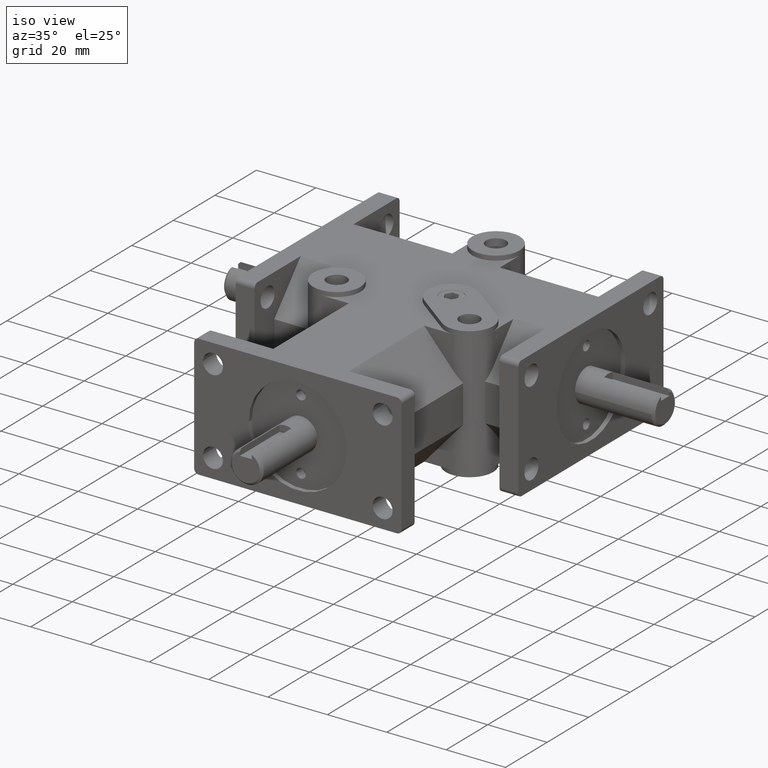
[diagram: clean part render]
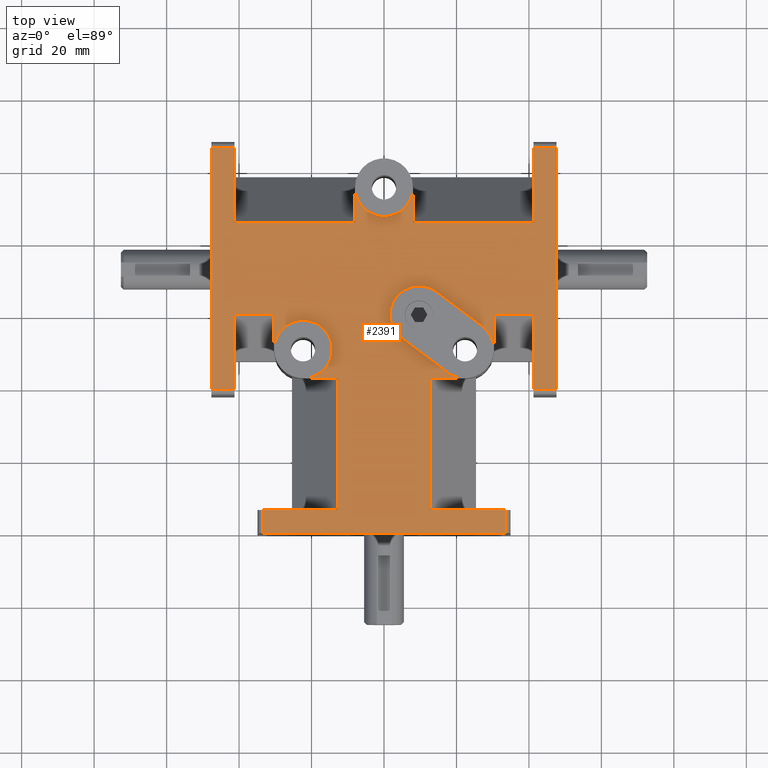
[diagram: tour spotlight — one face highlighted and labeled with its STEP entity id]
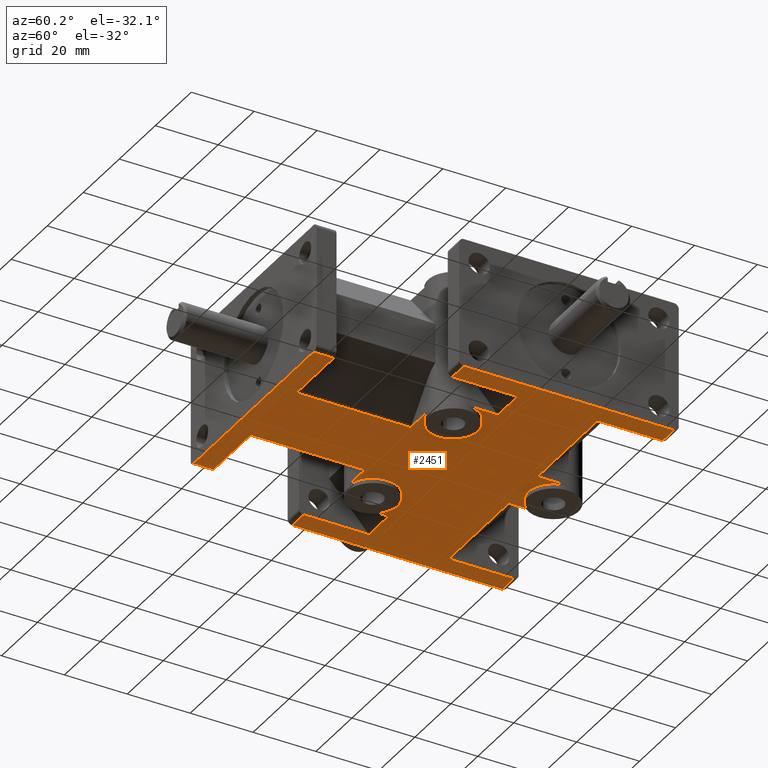
[diagram: tour spotlight — one face highlighted and labeled with its STEP entity id]
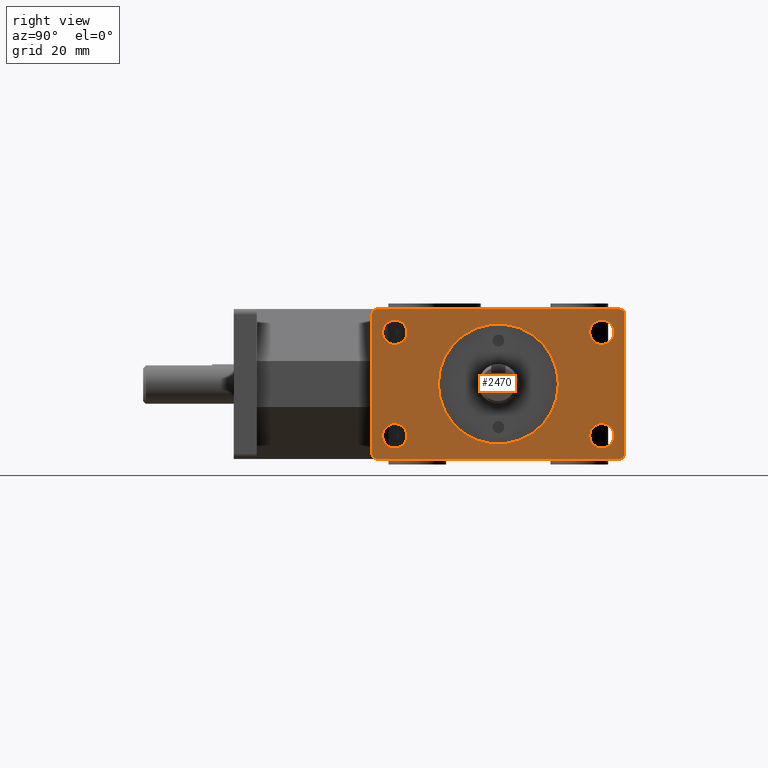
[diagram: tour spotlight — one face highlighted and labeled with its STEP entity id]
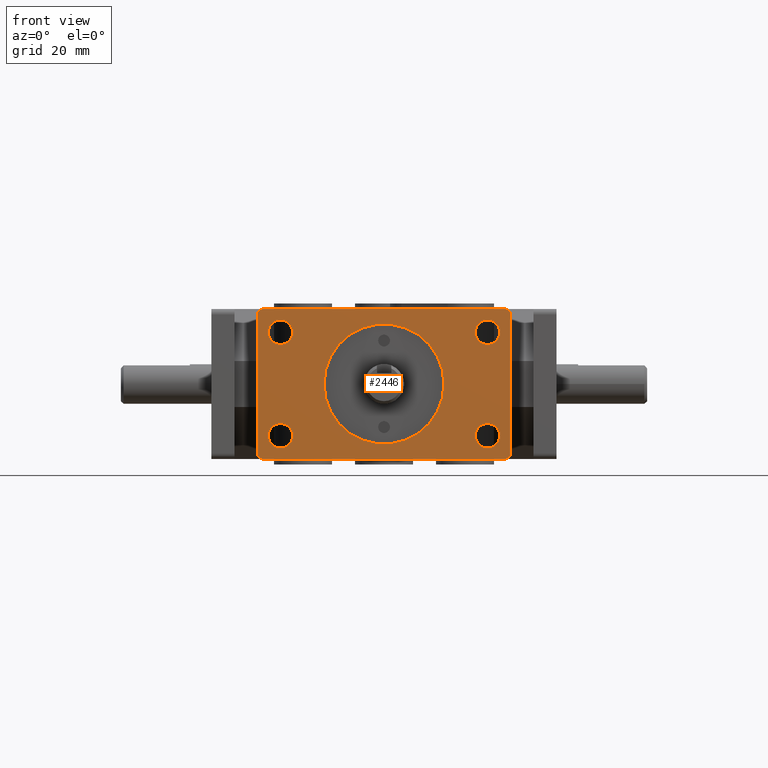
[diagram: tour spotlight — one face highlighted and labeled with its STEP entity id]
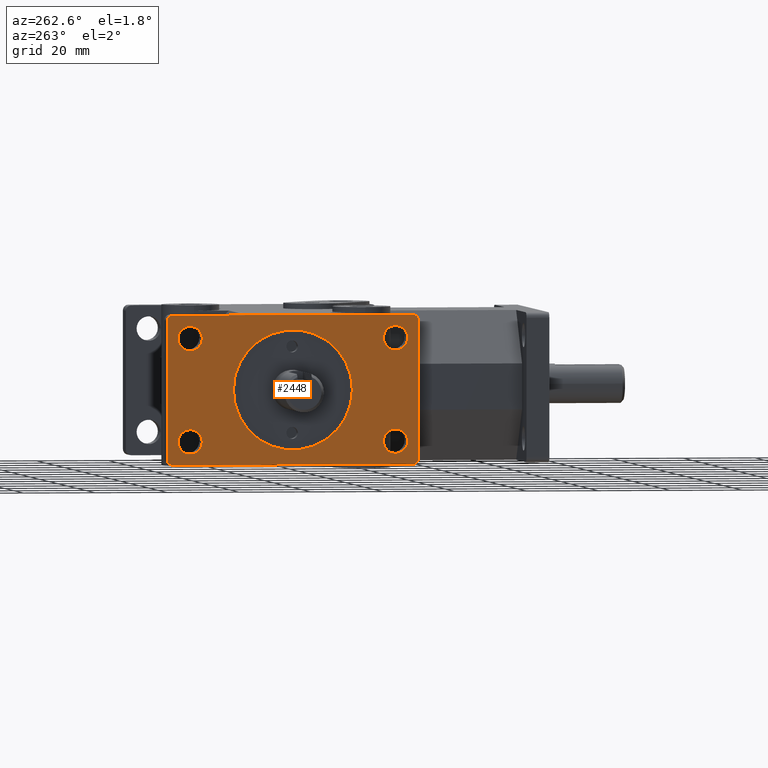
[diagram: tour spotlight — one face highlighted and labeled with its STEP entity id]
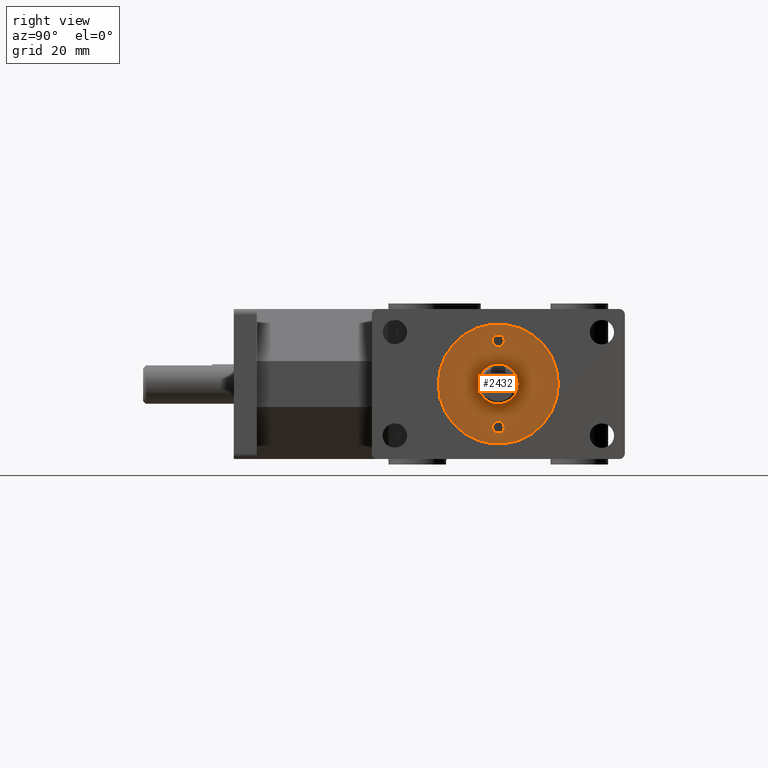
[diagram: tour spotlight — one face highlighted and labeled with its STEP entity id]
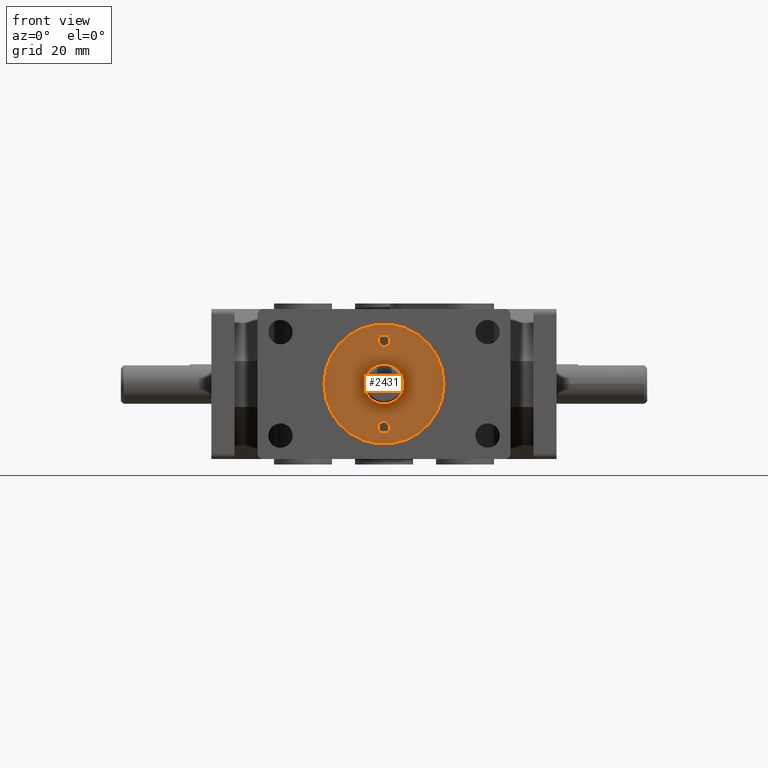
[diagram: tour spotlight — one face highlighted and labeled with its STEP entity id]
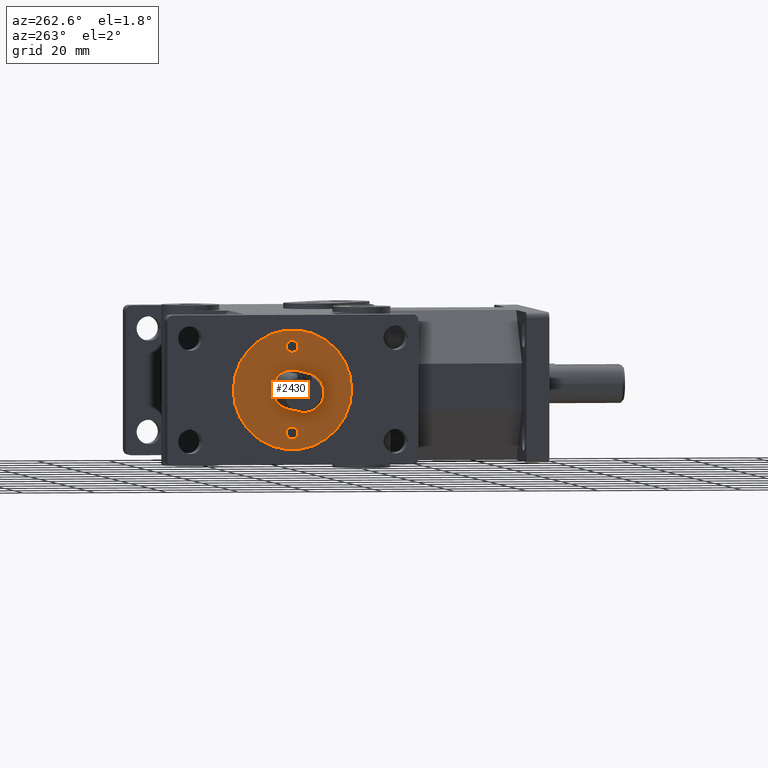
[diagram: tour spotlight — one face highlighted and labeled with its STEP entity id]
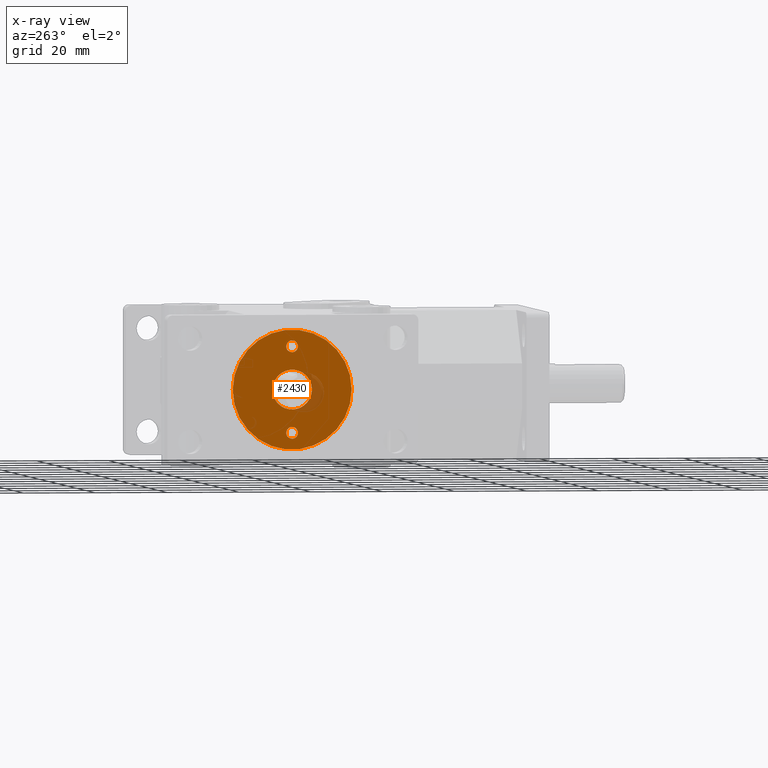
[diagram: x-ray of the same camera — body ghosted, this tour face saturated]
A machine part: a face-by-face anatomy tour. The part has 135 B-rep faces; the first image is the clean iso view, then the 8 largest visible faces are spotlighted one at a time (largest first), each with its STEP entity span.

Face 1 — top view, entity #2391. In plain terms, the highlighted planar face has unit normal (0, 0, 1).
Definition (entity closure, byte-faithful):
#113=CIRCLE('',#2553,8.001);
#114=CIRCLE('',#2554,8.001);
#115=CIRCLE('',#2555,8.001);
#116=CIRCLE('',#2556,8.001);
#117=CIRCLE('',#2557,8.001);
#233=FACE_OUTER_BOUND('',#368,.T.);
#368=EDGE_LOOP('',(#1654,#1655,#1656,#1657,#1658,#1659,#1660,#1661,#1662,
#1663,#1664,#1665,#1666,#1667,#1668,#1669,#1670,#1671,#1672,#1673,#1674,
#1675,#1676,#1677,#1678,#1679,#1680,#1681,#1682,#1683,#1684,#1685,#1686,
#1687));
#551=LINE('',#3536,#779);
#554=LINE('',#3545,#782);
#572=LINE('',#3592,#800);
#575=LINE('',#3602,#803);
#578=LINE('',#3609,#806);
#582=LINE('',#3620,#810);
#597=LINE('',#3656,#825);
#598=LINE('',#3658,#826);
#599=LINE('',#3660,#827);
#600=LINE('',#3662,#828);
#601=LINE('',#3664,#829);
#602=LINE('',#3665,#830);
#603=LINE('',#3667,#831);
#604=LINE('',#3671,#832);
#605=LINE('',#3675,#833);
#606=LINE('',#3678,#834);
#607=LINE('',#3680,#835);
#608=LINE('',#3682,#836);
#609=LINE('',#3684,#837);
#610=LINE('',#3686,#838);
#611=LINE('',#3687,#839);
#612=LINE('',#3689,#840);
#613=LINE('',#3692,#841);
#614=LINE('',#3694,#842);
#615=LINE('',#3696,#843);
#616=LINE('',#3698,#844);
#617=LINE('',#3700,#845);
#618=LINE('',#3701,#846);
#619=LINE('',#3703,#847);
#779=VECTOR('',#2795,1.);
#782=VECTOR('',#2802,1.);
#800=VECTOR('',#2836,1.);
#803=VECTOR('',#2843,1.);
#806=VECTOR('',#2848,1.);
#810=VECTOR('',#2856,1.);
#825=VECTOR('',#2887,1.);
#826=VECTOR('',#2888,1.);
#827=VECTOR('',#2889,1.);
#828=VECTOR('',#2890,1.);
#829=VECTOR('',#2891,1.);
#830=VECTOR('',#2892,1.);
#831=VECTOR('',#2893,1.);
#832=VECTOR('',#2896,1.);
#833=VECTOR('',#2899,1.);
#834=VECTOR('',#2902,1.);
#835=VECTOR('',#2903,1.);
#836=VECTOR('',#2904,1.);
#837=VECTOR('',#2905,1.);
#838=VECTOR('',#2906,1.);
#839=VECTOR('',#2907,1.);
#840=VECTOR('',#2908,1.);
#841=VECTOR('',#2911,1.);
#842=VECTOR('',#2912,1.);
#843=VECTOR('',#2913,1.);
#844=VECTOR('',#2914,1.);
#845=VECTOR('',#2915,1.);
#846=VECTOR('',#2916,1.);
#847=VECTOR('',#2917,1.);
#1009=VERTEX_POINT('',#3533);
#1010=VERTEX_POINT('',#3535);
#1013=VERTEX_POINT('',#3542);
#1014=VERTEX_POINT('',#3544);
#1031=VERTEX_POINT('',#3583);
#1035=VERTEX_POINT('',#3590);
#1039=VERTEX_POINT('',#3599);
#1040=VERTEX_POINT('',#3601);
#1041=VERTEX_POINT('',#3605);
#1043=VERTEX_POINT('',#3608);
#1046=VERTEX_POINT('',#3616);
#1048=VERTEX_POINT('',#3619);
#1061=VERTEX_POINT('',#3655);
#1062=VERTEX_POINT('',#3657);
#1063=VERTEX_POINT('',#3659);
#1064=VERTEX_POINT('',#3661);
#1065=VERTEX_POINT('',#3663);
#1066=VERTEX_POINT('',#3666);
#1067=VERTEX_POINT('',#3668);
#1068=VERTEX_POINT('',#3670);
#1069=VERTEX_POINT('',#3672);
#1070=VERTEX_POINT('',#3674);
#1071=VERTEX_POINT('',#3676);
#1072=VERTEX_POINT('',#3679);
#1073=VERTEX_POINT('',#3681);
#1074=VERTEX_POINT('',#3683);
#1075=VERTEX_POINT('',#3685);
#1076=VERTEX_POINT('',#3688);
#1077=VERTEX_POINT('',#3690);
#1078=VERTEX_POINT('',#3693);
#1079=VERTEX_POINT('',#3695);
#1080=VERTEX_POINT('',#3697);
#1081=VERTEX_POINT('',#3699);
#1082=VERTEX_POINT('',#3702);
#1242=EDGE_CURVE('',#1010,#1009,#551,.T.);
#1246=EDGE_CURVE('',#1014,#1013,#554,.T.);
#1268=EDGE_CURVE('',#1031,#1035,#572,.T.);
#1272=EDGE_CURVE('',#1040,#1039,#575,.T.);
#1275=EDGE_CURVE('',#1043,#1041,#578,.T.);
#1280=EDGE_CURVE('',#1048,#1046,#582,.T.);
#1298=EDGE_CURVE('',#1010,#1061,#597,.T.);
#1299=EDGE_CURVE('',#1062,#1009,#598,.T.);
#1300=EDGE_CURVE('',#1063,#1062,#599,.T.);
#1301=EDGE_CURVE('',#1064,#1063,#600,.T.);
#1302=EDGE_CURVE('',#1065,#1064,#601,.T.);
#1303=EDGE_CURVE('',#1043,#1065,#602,.T.);
#1304=EDGE_CURVE('',#1066,#1041,#603,.T.);
#1305=EDGE_CURVE('',#1066,#1067,#113,.T.);
#1306=EDGE_CURVE('',#1067,#1068,#604,.T.);
#1307=EDGE_CURVE('',#1068,#1069,#114,.T.);
#1308=EDGE_CURVE('',#1069,#1070,#605,.T.);
#1309=EDGE_CURVE('',#1070,#1071,#115,.T.);
#1310=EDGE_CURVE('',#1031,#1071,#606,.T.);
#1311=EDGE_CURVE('',#1035,#1072,#607,.T.);
#1312=EDGE_CURVE('',#1073,#1072,#608,.T.);
#1313=EDGE_CURVE('',#1074,#1073,#609,.T.);
#1314=EDGE_CURVE('',#1075,#1074,#610,.T.);
#1315=EDGE_CURVE('',#1014,#1075,#611,.T.);
#1316=EDGE_CURVE('',#1013,#1076,#612,.T.);
#1317=EDGE_CURVE('',#1076,#1077,#116,.T.);
#1318=EDGE_CURVE('',#1040,#1077,#613,.T.);
#1319=EDGE_CURVE('',#1039,#1078,#614,.T.);
#1320=EDGE_CURVE('',#1079,#1078,#615,.T.);
#1321=EDGE_CURVE('',#1080,#1079,#616,.T.);
#1322=EDGE_CURVE('',#1081,#1080,#617,.T.);
#1323=EDGE_CURVE('',#1048,#1081,#618,.T.);
#1324=EDGE_CURVE('',#1046,#1082,#619,.T.);
#1325=EDGE_CURVE('',#1082,#1061,#117,.T.);
#1654=ORIENTED_EDGE('',*,*,#1298,.F.);
#1655=ORIENTED_EDGE('',*,*,#1242,.T.);
#1656=ORIENTED_EDGE('',*,*,#1299,.F.);
#1657=ORIENTED_EDGE('',*,*,#1300,.F.);
#1658=ORIENTED_EDGE('',*,*,#1301,.F.);
#1659=ORIENTED_EDGE('',*,*,#1302,.F.);
#1660=ORIENTED_EDGE('',*,*,#1303,.F.);
#1661=ORIENTED_EDGE('',*,*,#1275,.T.);
#1662=ORIENTED_EDGE('',*,*,#1304,.F.);
#1663=ORIENTED_EDGE('',*,*,#1305,.T.);
#1664=ORIENTED_EDGE('',*,*,#1306,.T.);
#1665=ORIENTED_EDGE('',*,*,#1307,.T.);
#1666=ORIENTED_EDGE('',*,*,#1308,.T.);
#1667=ORIENTED_EDGE('',*,*,#1309,.T.);
#1668=ORIENTED_EDGE('',*,*,#1310,.F.);
#1669=ORIENTED_EDGE('',*,*,#1268,.T.);
#1670=ORIENTED_EDGE('',*,*,#1311,.T.);
#1671=ORIENTED_EDGE('',*,*,#1312,.F.);
#1672=ORIENTED_EDGE('',*,*,#1313,.F.);
#1673=ORIENTED_EDGE('',*,*,#1314,.F.);
#1674=ORIENTED_EDGE('',*,*,#1315,.F.);
#1675=ORIENTED_EDGE('',*,*,#1246,.T.);
#1676=ORIENTED_EDGE('',*,*,#1316,.T.);
#1677=ORIENTED_EDGE('',*,*,#1317,.T.);
#1678=ORIENTED_EDGE('',*,*,#1318,.F.);
#1679=ORIENTED_EDGE('',*,*,#1272,.T.);
#1680=ORIENTED_EDGE('',*,*,#1319,.T.);
#1681=ORIENTED_EDGE('',*,*,#1320,.F.);
#1682=ORIENTED_EDGE('',*,*,#1321,.F.);
#1683=ORIENTED_EDGE('',*,*,#1322,.F.);
#1684=ORIENTED_EDGE('',*,*,#1323,.F.);
#1685=ORIENTED_EDGE('',*,*,#1280,.T.);
#1686=ORIENTED_EDGE('',*,*,#1324,.T.);
#1687=ORIENTED_EDGE('',*,*,#1325,.T.);
#2304=PLANE('',#2552);
#2391=ADVANCED_FACE('',(#233),#2304,.T.);
#2552=AXIS2_PLACEMENT_3D('',#3654,#2885,#2886);
#2553=AXIS2_PLACEMENT_3D('',#3669,#2894,#2895);
#2554=AXIS2_PLACEMENT_3D('',#3673,#2897,#2898);
#2555=AXIS2_PLACEMENT_3D('',#3677,#2900,#2901);
#2556=AXIS2_PLACEMENT_3D('',#3691,#2909,#2910);
#2557=AXIS2_PLACEMENT_3D('',#3704,#2918,#2919);
#2795=DIRECTION('',(0.,-1.,0.));
#2802=DIRECTION('',(-1.,0.,0.));
#2836=DIRECTION('',(1.,0.,0.));
#2843=DIRECTION('',(-1.,0.,0.));
#2848=DIRECTION('',(0.,1.,0.));
#2856=DIRECTION('',(1.,0.,0.));
#2885=DIRECTION('center_axis',(0.,0.,1.));
#2886=DIRECTION('ref_axis',(-1.,0.,0.));
#2887=DIRECTION('',(-1.,0.,0.));
#2888=DIRECTION('',(1.,0.,0.));
#2889=DIRECTION('',(0.,1.,0.));
#2890=DIRECTION('',(-1.,0.,0.));
#2891=DIRECTION('',(0.,-1.,0.));
#2892=DIRECTION('',(1.,0.,0.));
#2893=DIRECTION('',(-1.,0.,0.));
#2894=DIRECTION('center_axis',(0.,0.,-1.));
#2895=DIRECTION('ref_axis',(1.,0.,0.));
#2896=DIRECTION('',(-0.8,0.6,0.));
#2897=DIRECTION('center_axis',(0.,0.,-1.));
#2898=DIRECTION('ref_axis',(1.,0.,0.));
#2899=DIRECTION('',(0.8,-0.6,0.));
#2900=DIRECTION('center_axis',(0.,0.,-1.));
#2901=DIRECTION('ref_axis',(1.,0.,0.));
#2902=DIRECTION('',(0.,-1.,0.));
#2903=DIRECTION('',(0.,-1.,0.));
#2904=DIRECTION('',(-1.,0.,0.));
#2905=DIRECTION('',(0.,-1.,0.));
#2906=DIRECTION('',(1.,0.,0.));
#2907=DIRECTION('',(0.,1.,0.));
#2908=DIRECTION('',(0.,1.,0.));
#2909=DIRECTION('center_axis',(0.,0.,-1.));
#2910=DIRECTION('ref_axis',(1.,0.,0.));
#2911=DIRECTION('',(0.,1.,0.));
#2912=DIRECTION('',(0.,1.,0.));
#2913=DIRECTION('',(1.,0.,0.));
#2914=DIRECTION('',(0.,1.,0.));
#2915=DIRECTION('',(-1.,0.,0.));
#2916=DIRECTION('',(0.,-1.,0.));
#2917=DIRECTION('',(0.,-1.,0.));
#2918=DIRECTION('center_axis',(0.,0.,-1.));
#2919=DIRECTION('ref_axis',(1.,0.,0.));
#3533=CARTESIAN_POINT('',(-12.7,6.35,20.701));
#3535=CARTESIAN_POINT('',(-12.7,42.672,20.701));
#3536=CARTESIAN_POINT('',(-12.7,29.9901887651822,20.701));
#3542=CARTESIAN_POINT('',(8.001,85.725,20.701));
#3544=CARTESIAN_POINT('',(41.275,85.725,20.701));
#3545=CARTESIAN_POINT('',(-20.6375,85.725,20.701));
#3583=CARTESIAN_POINT('',(30.353,60.325,20.701));
#3590=CARTESIAN_POINT('',(41.275,60.325,20.701));
#3592=CARTESIAN_POINT('',(-20.6375,60.325,20.701));
#3599=CARTESIAN_POINT('',(-41.275,85.725,20.701));
#3601=CARTESIAN_POINT('',(-8.001,85.725,20.701));
#3602=CARTESIAN_POINT('',(20.6375,85.725,20.701));
#3605=CARTESIAN_POINT('',(12.7,42.672,20.701));
#3608=CARTESIAN_POINT('',(12.7,6.35,20.701));
#3609=CARTESIAN_POINT('',(12.7,29.9901887651822,20.701));
#3616=CARTESIAN_POINT('',(-30.353,60.325,20.701));
#3619=CARTESIAN_POINT('',(-41.275,60.325,20.701));
#3620=CARTESIAN_POINT('',(20.6375,60.325,20.701));
#3654=CARTESIAN_POINT('Origin',(4.22994972382185E-15,53.6303775303644,20.701));
#3655=CARTESIAN_POINT('',(-22.352,42.672,20.701));
#3656=CARTESIAN_POINT('',(-22.352,42.672,20.701));
#3657=CARTESIAN_POINT('',(-33.401,6.35,20.701));
#3658=CARTESIAN_POINT('',(-12.7,6.35,20.701));
#3659=CARTESIAN_POINT('',(-33.401,0.,20.701));
#3660=CARTESIAN_POINT('',(-33.401,29.9901887651822,20.701));
#3661=CARTESIAN_POINT('',(33.401,0.,20.701));
#3662=CARTESIAN_POINT('',(34.925,0.,20.701));
#3663=CARTESIAN_POINT('',(33.401,6.35,20.701));
#3664=CARTESIAN_POINT('',(33.401,26.8151887651822,20.701));
#3665=CARTESIAN_POINT('',(34.925,6.35,20.701));
#3666=CARTESIAN_POINT('',(22.352,42.672,20.701));
#3667=CARTESIAN_POINT('',(-22.352,42.672,20.701));
#3668=CARTESIAN_POINT('',(17.5514,44.2722,20.701));
#3669=CARTESIAN_POINT('Origin',(22.352,50.673,20.701));
#3670=CARTESIAN_POINT('',(4.85140000000001,53.7972,20.701));
#3671=CARTESIAN_POINT('',(9.71946939271254,50.1461479554656,20.701));
#3672=CARTESIAN_POINT('',(14.4526,66.5988,20.701));
#3673=CARTESIAN_POINT('Origin',(9.652,60.198,20.701));
#3674=CARTESIAN_POINT('',(27.1526,57.0738,20.701));
#3675=CARTESIAN_POINT('',(12.9706693927125,67.7102479554656,20.701));
#3676=CARTESIAN_POINT('',(30.353,50.673,20.701));
#3677=CARTESIAN_POINT('Origin',(22.352,50.673,20.701));
#3678=CARTESIAN_POINT('',(30.353,50.673,20.701));
#3679=CARTESIAN_POINT('',(41.275,39.624,20.701));
#3680=CARTESIAN_POINT('',(41.275,50.6276887651822,20.701));
#3681=CARTESIAN_POINT('',(47.625,39.624,20.701));
#3682=CARTESIAN_POINT('',(20.6375,39.624,20.701));
#3683=CARTESIAN_POINT('',(47.625,106.426,20.701));
#3684=CARTESIAN_POINT('',(47.625,107.95,20.701));
#3685=CARTESIAN_POINT('',(41.275,106.426,20.701));
#3686=CARTESIAN_POINT('',(23.8125,106.426,20.701));
#3687=CARTESIAN_POINT('',(41.275,98.425,20.701));
#3688=CARTESIAN_POINT('',(8.00099999999999,95.377,20.701));
#3689=CARTESIAN_POINT('',(8.00099999999999,74.5036887651822,20.701));
#3690=CARTESIAN_POINT('',(-8.001,95.377,20.701));
#3691=CARTESIAN_POINT('Origin',(-5.63993296509579E-15,95.377,20.701));
#3692=CARTESIAN_POINT('',(-8.001,95.377,20.701));
#3693=CARTESIAN_POINT('',(-41.275,106.426,20.701));
#3694=CARTESIAN_POINT('',(-41.275,76.0276887651822,20.701));
#3695=CARTESIAN_POINT('',(-47.625,106.426,20.701));
#3696=CARTESIAN_POINT('',(-20.6375,106.426,20.701));
#3697=CARTESIAN_POINT('',(-47.625,39.624,20.701));
#3698=CARTESIAN_POINT('',(-47.625,107.95,20.701));
#3699=CARTESIAN_POINT('',(-41.275,39.624,20.701));
#3700=CARTESIAN_POINT('',(-23.8125,39.624,20.701));
#3701=CARTESIAN_POINT('',(-41.275,47.625,20.701));
#3702=CARTESIAN_POINT('',(-30.353,50.673,20.701));
#3703=CARTESIAN_POINT('',(-30.353,52.1516887651822,20.701));
#3704=CARTESIAN_POINT('Origin',(-22.352,50.673,20.701));

Face 2 — auxiliary view, entity #2451. In plain terms, the highlighted planar face has unit normal (0, 0, 1).
Definition (entity closure, byte-faithful):
#191=CIRCLE('',#2691,8.001);
#192=CIRCLE('',#2692,8.001);
#193=CIRCLE('',#2693,8.001);
#194=CIRCLE('',#2694,8.001);
#293=FACE_OUTER_BOUND('',#455,.T.);
#455=EDGE_LOOP('',(#1969,#1970,#1971,#1972,#1973,#1974,#1975,#1976,#1977,
#1978,#1979,#1980,#1981,#1982,#1983,#1984,#1985,#1986,#1987,#1988,#1989,
#1990,#1991,#1992,#1993,#1994,#1995,#1996,#1997,#1998,#1999));
#546=LINE('',#3521,#774);
#558=LINE('',#3556,#786);
#562=LINE('',#3565,#790);
#567=LINE('',#3580,#795);
#587=LINE('',#3635,#815);
#592=LINE('',#3647,#820);
#667=LINE('',#3905,#895);
#668=LINE('',#3911,#896);
#673=LINE('',#3935,#901);
#674=LINE('',#3941,#902);
#678=LINE('',#3962,#906);
#683=LINE('',#3986,#911);
#684=LINE('',#3988,#912);
#686=LINE('',#3995,#914);
#689=LINE('',#4007,#917);
#691=LINE('',#4014,#919);
#694=LINE('',#4026,#922);
#697=LINE('',#4034,#925);
#699=LINE('',#4042,#927);
#700=LINE('',#4045,#928);
#701=LINE('',#4046,#929);
#702=LINE('',#4048,#930);
#703=LINE('',#4051,#931);
#704=LINE('',#4052,#932);
#705=LINE('',#4054,#933);
#706=LINE('',#4059,#934);
#707=LINE('',#4060,#935);
#774=VECTOR('',#2784,1.);
#786=VECTOR('',#2810,1.);
#790=VECTOR('',#2816,1.);
#795=VECTOR('',#2827,1.);
#815=VECTOR('',#2867,1.);
#820=VECTOR('',#2876,1.);
#895=VECTOR('',#3121,1.);
#896=VECTOR('',#3126,1.);
#901=VECTOR('',#3151,1.);
#902=VECTOR('',#3156,1.);
#906=VECTOR('',#3178,1.);
#911=VECTOR('',#3203,1.);
#912=VECTOR('',#3206,1.);
#914=VECTOR('',#3214,1.);
#917=VECTOR('',#3227,1.);
#919=VECTOR('',#3235,1.);
#922=VECTOR('',#3248,1.);
#925=VECTOR('',#3257,1.);
#927=VECTOR('',#3265,1.);
#928=VECTOR('',#3268,1.);
#929=VECTOR('',#3269,1.);
#930=VECTOR('',#3270,1.);
#931=VECTOR('',#3273,1.);
#932=VECTOR('',#3274,1.);
#933=VECTOR('',#3275,1.);
#934=VECTOR('',#3280,1.);
#935=VECTOR('',#3281,1.);
#1001=VERTEX_POINT('',#3517);
#1003=VERTEX_POINT('',#3520);
#1018=VERTEX_POINT('',#3553);
#1019=VERTEX_POINT('',#3555);
#1022=VERTEX_POINT('',#3562);
#1023=VERTEX_POINT('',#3564);
#1029=VERTEX_POINT('',#3577);
#1030=VERTEX_POINT('',#3579);
#1054=VERTEX_POINT('',#3632);
#1055=VERTEX_POINT('',#3634);
#1057=VERTEX_POINT('',#3639);
#1060=VERTEX_POINT('',#3645);
#1137=VERTEX_POINT('',#3898);
#1140=VERTEX_POINT('',#3903);
#1142=VERTEX_POINT('',#3908);
#1143=VERTEX_POINT('',#3910);
#1149=VERTEX_POINT('',#3928);
#1152=VERTEX_POINT('',#3933);
#1154=VERTEX_POINT('',#3938);
#1155=VERTEX_POINT('',#3940);
#1162=VERTEX_POINT('',#3959);
#1163=VERTEX_POINT('',#3961);
#1169=VERTEX_POINT('',#3979);
#1172=VERTEX_POINT('',#3984);
#1189=VERTEX_POINT('',#4041);
#1190=VERTEX_POINT('',#4043);
#1191=VERTEX_POINT('',#4047);
#1192=VERTEX_POINT('',#4049);
#1193=VERTEX_POINT('',#4053);
#1194=VERTEX_POINT('',#4055);
#1195=VERTEX_POINT('',#4057);
#1235=EDGE_CURVE('',#1003,#1001,#546,.T.);
#1251=EDGE_CURVE('',#1019,#1018,#558,.T.);
#1255=EDGE_CURVE('',#1023,#1022,#562,.T.);
#1262=EDGE_CURVE('',#1030,#1029,#567,.T.);
#1287=EDGE_CURVE('',#1055,#1054,#587,.T.);
#1293=EDGE_CURVE('',#1057,#1060,#592,.T.);
#1414=EDGE_CURVE('',#1140,#1137,#667,.T.);
#1416=EDGE_CURVE('',#1142,#1143,#668,.T.);
#1428=EDGE_CURVE('',#1152,#1149,#673,.T.);
#1430=EDGE_CURVE('',#1154,#1155,#674,.T.);
#1440=EDGE_CURVE('',#1162,#1163,#678,.T.);
#1452=EDGE_CURVE('',#1172,#1169,#683,.T.);
#1453=EDGE_CURVE('',#1143,#1054,#684,.T.);
#1457=EDGE_CURVE('',#1137,#1142,#686,.T.);
#1464=EDGE_CURVE('',#1060,#1155,#689,.T.);
#1468=EDGE_CURVE('',#1149,#1154,#691,.T.);
#1475=EDGE_CURVE('',#1029,#1163,#694,.T.);
#1480=EDGE_CURVE('',#1023,#1172,#697,.T.);
#1484=EDGE_CURVE('',#1189,#1001,#699,.T.);
#1485=EDGE_CURVE('',#1189,#1190,#191,.T.);
#1486=EDGE_CURVE('',#1057,#1190,#700,.T.);
#1487=EDGE_CURVE('',#1019,#1152,#701,.T.);
#1488=EDGE_CURVE('',#1018,#1191,#702,.T.);
#1489=EDGE_CURVE('',#1191,#1192,#192,.T.);
#1490=EDGE_CURVE('',#1030,#1192,#703,.T.);
#1491=EDGE_CURVE('',#1169,#1162,#704,.T.);
#1492=EDGE_CURVE('',#1022,#1193,#705,.T.);
#1493=EDGE_CURVE('',#1193,#1194,#193,.T.);
#1494=EDGE_CURVE('',#1194,#1195,#194,.T.);
#1495=EDGE_CURVE('',#1055,#1195,#706,.T.);
#1496=EDGE_CURVE('',#1003,#1140,#707,.T.);
#1969=ORIENTED_EDGE('',*,*,#1484,.F.);
#1970=ORIENTED_EDGE('',*,*,#1485,.T.);
#1971=ORIENTED_EDGE('',*,*,#1486,.F.);
#1972=ORIENTED_EDGE('',*,*,#1293,.T.);
#1973=ORIENTED_EDGE('',*,*,#1464,.T.);
#1974=ORIENTED_EDGE('',*,*,#1430,.F.);
#1975=ORIENTED_EDGE('',*,*,#1468,.F.);
#1976=ORIENTED_EDGE('',*,*,#1428,.F.);
#1977=ORIENTED_EDGE('',*,*,#1487,.F.);
#1978=ORIENTED_EDGE('',*,*,#1251,.T.);
#1979=ORIENTED_EDGE('',*,*,#1488,.T.);
#1980=ORIENTED_EDGE('',*,*,#1489,.T.);
#1981=ORIENTED_EDGE('',*,*,#1490,.F.);
#1982=ORIENTED_EDGE('',*,*,#1262,.T.);
#1983=ORIENTED_EDGE('',*,*,#1475,.T.);
#1984=ORIENTED_EDGE('',*,*,#1440,.F.);
#1985=ORIENTED_EDGE('',*,*,#1491,.F.);
#1986=ORIENTED_EDGE('',*,*,#1452,.F.);
#1987=ORIENTED_EDGE('',*,*,#1480,.F.);
#1988=ORIENTED_EDGE('',*,*,#1255,.T.);
#1989=ORIENTED_EDGE('',*,*,#1492,.T.);
#1990=ORIENTED_EDGE('',*,*,#1493,.T.);
#1991=ORIENTED_EDGE('',*,*,#1494,.T.);
#1992=ORIENTED_EDGE('',*,*,#1495,.F.);
#1993=ORIENTED_EDGE('',*,*,#1287,.T.);
#1994=ORIENTED_EDGE('',*,*,#1453,.F.);
#1995=ORIENTED_EDGE('',*,*,#1416,.F.);
#1996=ORIENTED_EDGE('',*,*,#1457,.F.);
#1997=ORIENTED_EDGE('',*,*,#1414,.F.);
#1998=ORIENTED_EDGE('',*,*,#1496,.F.);
#1999=ORIENTED_EDGE('',*,*,#1235,.T.);
#2337=PLANE('',#2690);
#2451=ADVANCED_FACE('',(#293),#2337,.F.);
#2690=AXIS2_PLACEMENT_3D('',#4040,#3263,#3264);
#2691=AXIS2_PLACEMENT_3D('',#4044,#3266,#3267);
#2692=AXIS2_PLACEMENT_3D('',#4050,#3271,#3272);
#2693=AXIS2_PLACEMENT_3D('',#4056,#3276,#3277);
#2694=AXIS2_PLACEMENT_3D('',#4058,#3278,#3279);
#2784=DIRECTION('',(0.,1.,0.));
#2810=DIRECTION('',(1.,0.,0.));
#2816=DIRECTION('',(-1.,0.,0.));
#2827=DIRECTION('',(1.,0.,0.));
#2867=DIRECTION('',(0.,-1.,0.));
#2876=DIRECTION('',(-1.,0.,0.));
#3121=DIRECTION('',(0.,-1.,0.));
#3126=DIRECTION('',(0.,1.,0.));
#3151=DIRECTION('',(-1.,0.,0.));
#3156=DIRECTION('',(1.,0.,0.));
#3178=DIRECTION('',(-1.,0.,0.));
#3203=DIRECTION('',(1.,0.,0.));
#3206=DIRECTION('',(-1.,0.,0.));
#3214=DIRECTION('',(1.,0.,0.));
#3227=DIRECTION('',(0.,-1.,0.));
#3235=DIRECTION('',(0.,-1.,0.));
#3248=DIRECTION('',(0.,1.,0.));
#3257=DIRECTION('',(0.,-1.,0.));
#3263=DIRECTION('center_axis',(0.,0.,1.));
#3264=DIRECTION('ref_axis',(-1.,0.,0.));
#3265=DIRECTION('',(1.,0.,0.));
#3266=DIRECTION('center_axis',(0.,0.,1.));
#3267=DIRECTION('ref_axis',(1.,0.,0.));
#3268=DIRECTION('',(0.,-1.,0.));
#3269=DIRECTION('',(0.,1.,0.));
#3270=DIRECTION('',(0.,1.,0.));
#3271=DIRECTION('center_axis',(0.,0.,1.));
#3272=DIRECTION('ref_axis',(1.,0.,0.));
#3273=DIRECTION('',(0.,1.,0.));
#3274=DIRECTION('',(0.,1.,0.));
#3275=DIRECTION('',(0.,-1.,0.));
#3276=DIRECTION('center_axis',(0.,0.,1.));
#3277=DIRECTION('ref_axis',(1.,0.,0.));
#3278=DIRECTION('center_axis',(0.,0.,1.));
#3279=DIRECTION('ref_axis',(1.,0.,0.));
#3280=DIRECTION('',(1.,0.,0.));
#3281=DIRECTION('',(-1.,0.,0.));
#3517=CARTESIAN_POINT('',(-12.7,42.672,-20.701));
#3520=CARTESIAN_POINT('',(-12.7,6.35,-20.701));
#3521=CARTESIAN_POINT('',(-12.7,29.9901887651822,-20.701));
#3553=CARTESIAN_POINT('',(-8.001,85.725,-20.701));
#3555=CARTESIAN_POINT('',(-41.275,85.725,-20.701));
#3556=CARTESIAN_POINT('',(20.6375,85.725,-20.701));
#3562=CARTESIAN_POINT('',(30.353,60.325,-20.701));
#3564=CARTESIAN_POINT('',(41.275,60.325,-20.701));
#3565=CARTESIAN_POINT('',(-20.6375,60.325,-20.701));
#3577=CARTESIAN_POINT('',(41.275,85.725,-20.701));
#3579=CARTESIAN_POINT('',(8.001,85.725,-20.701));
#3580=CARTESIAN_POINT('',(-20.6375,85.725,-20.701));
#3632=CARTESIAN_POINT('',(12.7,6.35,-20.701));
#3634=CARTESIAN_POINT('',(12.7,42.672,-20.701));
#3635=CARTESIAN_POINT('',(12.7,29.9901887651822,-20.701));
#3639=CARTESIAN_POINT('',(-30.353,60.325,-20.701));
#3645=CARTESIAN_POINT('',(-41.275,60.325,-20.701));
#3647=CARTESIAN_POINT('',(20.6375,60.325,-20.701));
#3898=CARTESIAN_POINT('',(-33.401,0.,-20.701));
#3903=CARTESIAN_POINT('',(-33.401,6.35,-20.701));
#3905=CARTESIAN_POINT('',(-33.401,29.9901887651822,-20.701));
#3908=CARTESIAN_POINT('',(33.401,0.,-20.701));
#3910=CARTESIAN_POINT('',(33.401,6.35,-20.701));
#3911=CARTESIAN_POINT('',(33.401,26.8151887651822,-20.701));
#3928=CARTESIAN_POINT('',(-47.625,106.426,-20.701));
#3933=CARTESIAN_POINT('',(-41.275,106.426,-20.701));
#3935=CARTESIAN_POINT('',(-20.6375,106.426,-20.701));
#3938=CARTESIAN_POINT('',(-47.625,39.624,-20.701));
#3940=CARTESIAN_POINT('',(-41.275,39.624,-20.701));
#3941=CARTESIAN_POINT('',(-23.8125,39.624,-20.701));
#3959=CARTESIAN_POINT('',(47.625,106.426,-20.701));
#3961=CARTESIAN_POINT('',(41.275,106.426,-20.701));
#3962=CARTESIAN_POINT('',(23.8125,106.426,-20.701));
#3979=CARTESIAN_POINT('',(47.625,39.624,-20.701));
#3984=CARTESIAN_POINT('',(41.275,39.624,-20.701));
#3986=CARTESIAN_POINT('',(20.6375,39.624,-20.701));
#3988=CARTESIAN_POINT('',(17.4625,6.35,-20.701));
#3995=CARTESIAN_POINT('',(34.925,0.,-20.701));
#4007=CARTESIAN_POINT('',(-41.275,45.8651887651822,-20.701));
#4014=CARTESIAN_POINT('',(-47.625,107.95,-20.701));
#4026=CARTESIAN_POINT('',(41.275,80.7901887651822,-20.701));
#4034=CARTESIAN_POINT('',(41.275,47.625,-20.701));
#4040=CARTESIAN_POINT('Origin',(4.22994972382185E-15,53.6303775303644,-20.701));
#4041=CARTESIAN_POINT('',(-22.352,42.672,-20.701));
#4042=CARTESIAN_POINT('',(-22.352,42.672,-20.701));
#4043=CARTESIAN_POINT('',(-30.353,50.673,-20.701));
#4044=CARTESIAN_POINT('Origin',(-22.352,50.673,-20.701));
#4045=CARTESIAN_POINT('',(-30.353,50.673,-20.701));
#4046=CARTESIAN_POINT('',(-41.275,107.95,-20.701));
#4047=CARTESIAN_POINT('',(-8.001,95.377,-20.701));
#4048=CARTESIAN_POINT('',(-8.00100000000001,67.2000735220392,-20.701));
#4049=CARTESIAN_POINT('',(8.00099999999999,95.377,-20.701));
#4050=CARTESIAN_POINT('Origin',(-5.63993296509579E-15,95.377,-20.701));
#4051=CARTESIAN_POINT('',(8.00099999999999,95.377,-20.701));
#4052=CARTESIAN_POINT('',(47.625,107.95,-20.701));
#4053=CARTESIAN_POINT('',(30.353,50.673,-20.701));
#4054=CARTESIAN_POINT('',(30.353,67.2000735220392,-20.701));
#4055=CARTESIAN_POINT('',(14.351,50.673,-20.701));
#4056=CARTESIAN_POINT('Origin',(22.352,50.673,-20.701));
#4057=CARTESIAN_POINT('',(22.352,42.672,-20.701));
#4058=CARTESIAN_POINT('Origin',(22.352,50.673,-20.701));
#4059=CARTESIAN_POINT('',(-22.352,42.672,-20.701));
#4060=CARTESIAN_POINT('',(-25.4,6.35,-20.701));

Face 3 — right view, entity #2470. In plain terms, the highlighted planar face has unit normal (1, 0, 0).
Definition (entity closure, byte-faithful):
#46=FACE_BOUND('',#479,.T.);
#47=FACE_BOUND('',#480,.T.);
#48=FACE_BOUND('',#481,.T.);
#49=FACE_BOUND('',#482,.T.);
#50=FACE_BOUND('',#483,.T.);
#132=CIRCLE('',#2588,16.5608);
#167=CIRCLE('',#2657,1.524);
#169=CIRCLE('',#2660,1.524);
#171=CIRCLE('',#2663,1.524);
#173=CIRCLE('',#2666,1.524);
#203=CIRCLE('',#2722,3.3655);
#204=CIRCLE('',#2723,3.3655);
#205=CIRCLE('',#2724,3.3655);
#206=CIRCLE('',#2725,3.3655);
#312=FACE_OUTER_BOUND('',#478,.T.);
#478=EDGE_LOOP('',(#2082,#2083,#2084,#2085,#2086,#2087,#2088,#2089));
#479=EDGE_LOOP('',(#2090));
#480=EDGE_LOOP('',(#2091));
#481=EDGE_LOOP('',(#2092));
#482=EDGE_LOOP('',(#2093));
#483=EDGE_LOOP('',(#2094));
#609=LINE('',#3684,#837);
#704=LINE('',#4052,#932);
#736=LINE('',#4137,#964);
#737=LINE('',#4139,#965);
#837=VECTOR('',#2905,1.);
#932=VECTOR('',#3274,1.);
#964=VECTOR('',#3362,1.);
#965=VECTOR('',#3365,1.);
#1073=VERTEX_POINT('',#3681);
#1074=VERTEX_POINT('',#3683);
#1097=VERTEX_POINT('',#3760);
#1161=VERTEX_POINT('',#3958);
#1162=VERTEX_POINT('',#3959);
#1165=VERTEX_POINT('',#3967);
#1167=VERTEX_POINT('',#3973);
#1169=VERTEX_POINT('',#3979);
#1170=VERTEX_POINT('',#3980);
#1218=VERTEX_POINT('',#4140);
#1219=VERTEX_POINT('',#4142);
#1220=VERTEX_POINT('',#4144);
#1221=VERTEX_POINT('',#4146);
#1313=EDGE_CURVE('',#1074,#1073,#609,.T.);
#1351=EDGE_CURVE('',#1097,#1097,#132,.T.);
#1439=EDGE_CURVE('',#1161,#1162,#167,.T.);
#1443=EDGE_CURVE('',#1074,#1165,#169,.T.);
#1446=EDGE_CURVE('',#1167,#1073,#171,.T.);
#1449=EDGE_CURVE('',#1169,#1170,#173,.T.);
#1491=EDGE_CURVE('',#1169,#1162,#704,.T.);
#1533=EDGE_CURVE('',#1165,#1161,#736,.T.);
#1534=EDGE_CURVE('',#1167,#1170,#737,.T.);
#1535=EDGE_CURVE('',#1218,#1218,#203,.T.);
#1536=EDGE_CURVE('',#1219,#1219,#204,.T.);
#1537=EDGE_CURVE('',#1220,#1220,#205,.T.);
#1538=EDGE_CURVE('',#1221,#1221,#206,.T.);
#2082=ORIENTED_EDGE('',*,*,#1439,.F.);
#2083=ORIENTED_EDGE('',*,*,#1533,.F.);
#2084=ORIENTED_EDGE('',*,*,#1443,.F.);
#2085=ORIENTED_EDGE('',*,*,#1313,.T.);
#2086=ORIENTED_EDGE('',*,*,#1446,.F.);
#2087=ORIENTED_EDGE('',*,*,#1534,.T.);
#2088=ORIENTED_EDGE('',*,*,#1449,.F.);
#2089=ORIENTED_EDGE('',*,*,#1491,.T.);
#2090=ORIENTED_EDGE('',*,*,#1535,.T.);
#2091=ORIENTED_EDGE('',*,*,#1536,.T.);
#2092=ORIENTED_EDGE('',*,*,#1537,.T.);
#2093=ORIENTED_EDGE('',*,*,#1538,.T.);
#2094=ORIENTED_EDGE('',*,*,#1351,.T.);
#2351=PLANE('',#2721);
#2470=ADVANCED_FACE('',(#312,#46,#47,#48,#49,#50),#2351,.T.);
#2588=AXIS2_PLACEMENT_3D('',#3761,#2991,#2992);
#2657=AXIS2_PLACEMENT_3D('',#3960,#3176,#3177);
#2660=AXIS2_PLACEMENT_3D('',#3968,#3184,#3185);
#2663=AXIS2_PLACEMENT_3D('',#3974,#3191,#3192);
#2666=AXIS2_PLACEMENT_3D('',#3981,#3198,#3199);
#2721=AXIS2_PLACEMENT_3D('',#4138,#3363,#3364);
#2722=AXIS2_PLACEMENT_3D('',#4141,#3366,#3367);
#2723=AXIS2_PLACEMENT_3D('',#4143,#3368,#3369);
#2724=AXIS2_PLACEMENT_3D('',#4145,#3370,#3371);
#2725=AXIS2_PLACEMENT_3D('',#4147,#3372,#3373);
#2905=DIRECTION('',(0.,-1.,0.));
#2991=DIRECTION('center_axis',(-1.,0.,0.));
#2992=DIRECTION('ref_axis',(0.,1.,0.));
#3176=DIRECTION('center_axis',(-1.,0.,0.));
#3177=DIRECTION('ref_axis',(0.,0.707106781186541,-0.707106781186554));
#3184=DIRECTION('center_axis',(-1.,0.,0.));
#3185=DIRECTION('ref_axis',(0.,0.707106781186541,0.707106781186554));
#3191=DIRECTION('center_axis',(-1.,0.,0.));
#3192=DIRECTION('ref_axis',(0.,-0.707106781186548,0.707106781186548));
#3198=DIRECTION('center_axis',(-1.,0.,0.));
#3199=DIRECTION('ref_axis',(0.,-0.707106781186548,-0.707106781186548));
#3274=DIRECTION('',(0.,1.,0.));
#3362=DIRECTION('',(0.,0.,-1.));
#3363=DIRECTION('center_axis',(1.,0.,0.));
#3364=DIRECTION('ref_axis',(0.,-1.,0.));
#3365=DIRECTION('',(0.,0.,-1.));
#3366=DIRECTION('center_axis',(-1.,0.,0.));
#3367=DIRECTION('ref_axis',(0.,1.,0.));
#3368=DIRECTION('center_axis',(-1.,0.,0.));
#3369=DIRECTION('ref_axis',(0.,1.,0.));
#3370=DIRECTION('center_axis',(-1.,0.,0.));
#3371=DIRECTION('ref_axis',(0.,1.,0.));
#3372=DIRECTION('center_axis',(-1.,0.,0.));
#3373=DIRECTION('ref_axis',(0.,1.,0.));
#3681=CARTESIAN_POINT('',(47.625,39.624,20.701));
#3683=CARTESIAN_POINT('',(47.625,106.426,20.701));
#3684=CARTESIAN_POINT('',(47.625,107.95,20.701));
#3760=CARTESIAN_POINT('',(47.625,56.4642,2.02811307113195E-15));
#3761=CARTESIAN_POINT('Origin',(47.625,73.025,0.));
#3958=CARTESIAN_POINT('',(47.625,107.95,-19.177));
#3959=CARTESIAN_POINT('',(47.625,106.426,-20.701));
#3960=CARTESIAN_POINT('Origin',(47.625,106.426,-19.177));
#3967=CARTESIAN_POINT('',(47.625,107.95,19.177));
#3968=CARTESIAN_POINT('Origin',(47.625,106.426,19.177));
#3973=CARTESIAN_POINT('',(47.625,38.1,19.177));
#3974=CARTESIAN_POINT('Origin',(47.625,39.624,19.177));
#3979=CARTESIAN_POINT('',(47.625,39.624,-20.701));
#3980=CARTESIAN_POINT('',(47.625,38.1,-19.177));
#3981=CARTESIAN_POINT('Origin',(47.625,39.624,-19.177));
#4052=CARTESIAN_POINT('',(47.625,107.95,-20.701));
#4137=CARTESIAN_POINT('',(47.625,107.95,0.));
#4138=CARTESIAN_POINT('Origin',(47.625,38.1,0.));
#4139=CARTESIAN_POINT('',(47.625,38.1,0.));
#4140=CARTESIAN_POINT('',(47.625,98.2345,-14.2748));
#4141=CARTESIAN_POINT('Origin',(47.625,101.6,-14.2748));
#4142=CARTESIAN_POINT('',(47.625,41.0845,-14.2748));
#4143=CARTESIAN_POINT('Origin',(47.625,44.45,-14.2748));
#4144=CARTESIAN_POINT('',(47.625,41.0845,14.2748));
#4145=CARTESIAN_POINT('Origin',(47.625,44.45,14.2748));
#4146=CARTESIAN_POINT('',(47.625,98.2345,14.2748));
#4147=CARTESIAN_POINT('Origin',(47.625,101.6,14.2748));

Face 4 — front view, entity #2446. In plain terms, the highlighted planar face has unit normal (0, -1, 0).
Definition (entity closure, byte-faithful):
#26=FACE_BOUND('',#435,.T.);
#27=FACE_BOUND('',#436,.T.);
#28=FACE_BOUND('',#437,.T.);
#29=FACE_BOUND('',#438,.T.);
#30=FACE_BOUND('',#439,.T.);
#134=CIRCLE('',#2591,16.5608);
#151=CIRCLE('',#2633,1.524);
#153=CIRCLE('',#2636,1.524);
#155=CIRCLE('',#2639,1.524);
#157=CIRCLE('',#2642,1.524);
#177=CIRCLE('',#2672,3.3655);
#178=CIRCLE('',#2673,3.3655);
#179=CIRCLE('',#2674,3.3655);
#180=CIRCLE('',#2675,3.3655);
#288=FACE_OUTER_BOUND('',#434,.T.);
#434=EDGE_LOOP('',(#1913,#1914,#1915,#1916,#1917,#1918,#1919,#1920));
#435=EDGE_LOOP('',(#1921));
#436=EDGE_LOOP('',(#1922));
#437=EDGE_LOOP('',(#1923));
#438=EDGE_LOOP('',(#1924));
#439=EDGE_LOOP('',(#1925));
#600=LINE('',#3662,#828);
#686=LINE('',#3995,#914);
#687=LINE('',#3996,#915);
#688=LINE('',#3997,#916);
#828=VECTOR('',#2890,1.);
#914=VECTOR('',#3214,1.);
#915=VECTOR('',#3215,1.);
#916=VECTOR('',#3216,1.);
#1063=VERTEX_POINT('',#3659);
#1064=VERTEX_POINT('',#3661);
#1099=VERTEX_POINT('',#3766);
#1137=VERTEX_POINT('',#3898);
#1138=VERTEX_POINT('',#3899);
#1141=VERTEX_POINT('',#3907);
#1142=VERTEX_POINT('',#3908);
#1145=VERTEX_POINT('',#3916);
#1147=VERTEX_POINT('',#3922);
#1175=VERTEX_POINT('',#3998);
#1176=VERTEX_POINT('',#4000);
#1177=VERTEX_POINT('',#4002);
#1178=VERTEX_POINT('',#4004);
#1301=EDGE_CURVE('',#1064,#1063,#600,.T.);
#1354=EDGE_CURVE('',#1099,#1099,#134,.T.);
#1411=EDGE_CURVE('',#1137,#1138,#151,.T.);
#1415=EDGE_CURVE('',#1141,#1142,#153,.T.);
#1419=EDGE_CURVE('',#1064,#1145,#155,.T.);
#1422=EDGE_CURVE('',#1147,#1063,#157,.T.);
#1457=EDGE_CURVE('',#1137,#1142,#686,.T.);
#1458=EDGE_CURVE('',#1145,#1141,#687,.T.);
#1459=EDGE_CURVE('',#1147,#1138,#688,.T.);
#1460=EDGE_CURVE('',#1175,#1175,#177,.T.);
#1461=EDGE_CURVE('',#1176,#1176,#178,.T.);
#1462=EDGE_CURVE('',#1177,#1177,#179,.T.);
#1463=EDGE_CURVE('',#1178,#1178,#180,.T.);
#1913=ORIENTED_EDGE('',*,*,#1411,.F.);
#1914=ORIENTED_EDGE('',*,*,#1457,.T.);
#1915=ORIENTED_EDGE('',*,*,#1415,.F.);
#1916=ORIENTED_EDGE('',*,*,#1458,.F.);
#1917=ORIENTED_EDGE('',*,*,#1419,.F.);
#1918=ORIENTED_EDGE('',*,*,#1301,.T.);
#1919=ORIENTED_EDGE('',*,*,#1422,.F.);
#1920=ORIENTED_EDGE('',*,*,#1459,.T.);
#1921=ORIENTED_EDGE('',*,*,#1354,.T.);
#1922=ORIENTED_EDGE('',*,*,#1460,.T.);
#1923=ORIENTED_EDGE('',*,*,#1461,.T.);
#1924=ORIENTED_EDGE('',*,*,#1462,.T.);
#1925=ORIENTED_EDGE('',*,*,#1463,.T.);
#2332=PLANE('',#2671);
#2446=ADVANCED_FACE('',(#288,#26,#27,#28,#29,#30),#2332,.T.);
#2591=AXIS2_PLACEMENT_3D('',#3767,#2998,#2999);
#2633=AXIS2_PLACEMENT_3D('',#3900,#3116,#3117);
#2636=AXIS2_PLACEMENT_3D('',#3909,#3124,#3125);
#2639=AXIS2_PLACEMENT_3D('',#3917,#3132,#3133);
#2642=AXIS2_PLACEMENT_3D('',#3923,#3139,#3140);
#2671=AXIS2_PLACEMENT_3D('',#3994,#3212,#3213);
#2672=AXIS2_PLACEMENT_3D('',#3999,#3217,#3218);
#2673=AXIS2_PLACEMENT_3D('',#4001,#3219,#3220);
#2674=AXIS2_PLACEMENT_3D('',#4003,#3221,#3222);
#2675=AXIS2_PLACEMENT_3D('',#4005,#3223,#3224);
#2890=DIRECTION('',(-1.,0.,0.));
#2998=DIRECTION('center_axis',(0.,1.,0.));
#2999=DIRECTION('ref_axis',(1.,0.,0.));
#3116=DIRECTION('center_axis',(0.,1.,0.));
#3117=DIRECTION('ref_axis',(-0.707106781186548,0.,-0.707106781186548));
#3124=DIRECTION('center_axis',(0.,1.,0.));
#3125=DIRECTION('ref_axis',(0.707106781186548,0.,-0.707106781186548));
#3132=DIRECTION('center_axis',(0.,1.,0.));
#3133=DIRECTION('ref_axis',(0.707106781186548,0.,0.707106781186548));
#3139=DIRECTION('center_axis',(0.,1.,0.));
#3140=DIRECTION('ref_axis',(-0.707106781186548,0.,0.707106781186548));
#3212=DIRECTION('center_axis',(0.,-1.,0.));
#3213=DIRECTION('ref_axis',(0.,0.,1.));
#3214=DIRECTION('',(1.,0.,0.));
#3215=DIRECTION('',(0.,0.,-1.));
#3216=DIRECTION('',(0.,0.,-1.));
#3217=DIRECTION('center_axis',(0.,1.,0.));
#3218=DIRECTION('ref_axis',(1.,0.,0.));
#3219=DIRECTION('center_axis',(0.,1.,0.));
#3220=DIRECTION('ref_axis',(1.,0.,0.));
#3221=DIRECTION('center_axis',(0.,1.,0.));
#3222=DIRECTION('ref_axis',(1.,0.,0.));
#3223=DIRECTION('center_axis',(0.,1.,0.));
#3224=DIRECTION('ref_axis',(1.,0.,0.));
#3659=CARTESIAN_POINT('',(-33.401,0.,20.701));
#3661=CARTESIAN_POINT('',(33.401,0.,20.701));
#3662=CARTESIAN_POINT('',(34.925,0.,20.701));
#3766=CARTESIAN_POINT('',(-16.5608,5.63993296509579E-15,2.02811307113195E-15));
#3767=CARTESIAN_POINT('Origin',(0.,5.63993296509579E-15,0.));
#3898=CARTESIAN_POINT('',(-33.401,0.,-20.701));
#3899=CARTESIAN_POINT('',(-34.925,5.63993296509579E-15,-19.177));
#3900=CARTESIAN_POINT('Origin',(-33.401,5.63993296509579E-15,-19.177));
#3907=CARTESIAN_POINT('',(34.925,0.,-19.177));
#3908=CARTESIAN_POINT('',(33.401,0.,-20.701));
#3909=CARTESIAN_POINT('Origin',(33.401,5.63993296509579E-15,-19.177));
#3916=CARTESIAN_POINT('',(34.925,0.,19.177));
#3917=CARTESIAN_POINT('Origin',(33.401,5.63993296509579E-15,19.177));
#3922=CARTESIAN_POINT('',(-34.925,5.63993296509579E-15,19.177));
#3923=CARTESIAN_POINT('Origin',(-33.401,5.63993296509579E-15,19.177));
#3994=CARTESIAN_POINT('Origin',(-34.925,5.63993296509579E-15,0.));
#3995=CARTESIAN_POINT('',(34.925,0.,-20.701));
#3996=CARTESIAN_POINT('',(34.925,0.,0.));
#3997=CARTESIAN_POINT('',(-34.925,5.63993296509579E-15,0.));
#3998=CARTESIAN_POINT('',(25.2095,5.63993296509579E-15,14.2748));
#3999=CARTESIAN_POINT('Origin',(28.575,5.63993296509579E-15,14.2748));
#4000=CARTESIAN_POINT('',(-31.9405,5.63993296509579E-15,-14.2748));
#4001=CARTESIAN_POINT('Origin',(-28.575,5.63993296509579E-15,-14.2748));
#4002=CARTESIAN_POINT('',(-31.9405,5.63993296509579E-15,14.2748));
#4003=CARTESIAN_POINT('Origin',(-28.575,5.63993296509579E-15,14.2748));
#4004=CARTESIAN_POINT('',(25.2095,5.63993296509579E-15,-14.2748));
#4005=CARTESIAN_POINT('Origin',(28.575,5.63993296509579E-15,-14.2748));

Face 5 — auxiliary view, entity #2448. In plain terms, the highlighted planar face has unit normal (-1, 0, 0).
Definition (entity closure, byte-faithful):
#33=FACE_BOUND('',#444,.T.);
#34=FACE_BOUND('',#445,.T.);
#35=FACE_BOUND('',#446,.T.);
#36=FACE_BOUND('',#447,.T.);
#37=FACE_BOUND('',#448,.T.);
#130=CIRCLE('',#2585,16.5608);
#159=CIRCLE('',#2645,1.524);
#161=CIRCLE('',#2648,1.524);
#163=CIRCLE('',#2651,1.524);
#165=CIRCLE('',#2654,1.524);
#183=CIRCLE('',#2680,3.3655);
#184=CIRCLE('',#2681,3.3655);
#185=CIRCLE('',#2682,3.3655);
#186=CIRCLE('',#2683,3.3655);
#290=FACE_OUTER_BOUND('',#443,.T.);
#443=EDGE_LOOP('',(#1936,#1937,#1938,#1939,#1940,#1941,#1942,#1943));
#444=EDGE_LOOP('',(#1944));
#445=EDGE_LOOP('',(#1945));
#446=EDGE_LOOP('',(#1946));
#447=EDGE_LOOP('',(#1947));
#448=EDGE_LOOP('',(#1948));
#616=LINE('',#3698,#844);
#691=LINE('',#4014,#919);
#692=LINE('',#4015,#920);
#693=LINE('',#4016,#921);
#844=VECTOR('',#2914,1.);
#919=VECTOR('',#3235,1.);
#920=VECTOR('',#3236,1.);
#921=VECTOR('',#3237,1.);
#1079=VERTEX_POINT('',#3695);
#1080=VERTEX_POINT('',#3697);
#1095=VERTEX_POINT('',#3754);
#1149=VERTEX_POINT('',#3928);
#1150=VERTEX_POINT('',#3929);
#1153=VERTEX_POINT('',#3937);
#1154=VERTEX_POINT('',#3938);
#1157=VERTEX_POINT('',#3946);
#1159=VERTEX_POINT('',#3952);
#1181=VERTEX_POINT('',#4017);
#1182=VERTEX_POINT('',#4019);
#1183=VERTEX_POINT('',#4021);
#1184=VERTEX_POINT('',#4023);
#1321=EDGE_CURVE('',#1080,#1079,#616,.T.);
#1348=EDGE_CURVE('',#1095,#1095,#130,.T.);
#1425=EDGE_CURVE('',#1149,#1150,#159,.T.);
#1429=EDGE_CURVE('',#1153,#1154,#161,.T.);
#1433=EDGE_CURVE('',#1080,#1157,#163,.T.);
#1436=EDGE_CURVE('',#1159,#1079,#165,.T.);
#1468=EDGE_CURVE('',#1149,#1154,#691,.T.);
#1469=EDGE_CURVE('',#1157,#1153,#692,.T.);
#1470=EDGE_CURVE('',#1159,#1150,#693,.T.);
#1471=EDGE_CURVE('',#1181,#1181,#183,.T.);
#1472=EDGE_CURVE('',#1182,#1182,#184,.T.);
#1473=EDGE_CURVE('',#1183,#1183,#185,.T.);
#1474=EDGE_CURVE('',#1184,#1184,#186,.T.);
#1936=ORIENTED_EDGE('',*,*,#1425,.F.);
#1937=ORIENTED_EDGE('',*,*,#1468,.T.);
#1938=ORIENTED_EDGE('',*,*,#1429,.F.);
#1939=ORIENTED_EDGE('',*,*,#1469,.F.);
#1940=ORIENTED_EDGE('',*,*,#1433,.F.);
#1941=ORIENTED_EDGE('',*,*,#1321,.T.);
#1942=ORIENTED_EDGE('',*,*,#1436,.F.);
#1943=ORIENTED_EDGE('',*,*,#1470,.T.);
#1944=ORIENTED_EDGE('',*,*,#1348,.T.);
#1945=ORIENTED_EDGE('',*,*,#1471,.T.);
#1946=ORIENTED_EDGE('',*,*,#1472,.T.);
#1947=ORIENTED_EDGE('',*,*,#1473,.T.);
#1948=ORIENTED_EDGE('',*,*,#1474,.T.);
#2334=PLANE('',#2679);
#2448=ADVANCED_FACE('',(#290,#33,#34,#35,#36,#37),#2334,.T.);
#2585=AXIS2_PLACEMENT_3D('',#3755,#2984,#2985);
#2645=AXIS2_PLACEMENT_3D('',#3930,#3146,#3147);
#2648=AXIS2_PLACEMENT_3D('',#3939,#3154,#3155);
#2651=AXIS2_PLACEMENT_3D('',#3947,#3162,#3163);
#2654=AXIS2_PLACEMENT_3D('',#3953,#3169,#3170);
#2679=AXIS2_PLACEMENT_3D('',#4013,#3233,#3234);
#2680=AXIS2_PLACEMENT_3D('',#4018,#3238,#3239);
#2681=AXIS2_PLACEMENT_3D('',#4020,#3240,#3241);
#2682=AXIS2_PLACEMENT_3D('',#4022,#3242,#3243);
#2683=AXIS2_PLACEMENT_3D('',#4024,#3244,#3245);
#2914=DIRECTION('',(0.,1.,0.));
#2984=DIRECTION('center_axis',(1.,0.,0.));
#2985=DIRECTION('ref_axis',(0.,1.,0.));
#3146=DIRECTION('center_axis',(1.,0.,0.));
#3147=DIRECTION('ref_axis',(0.,0.707106781186541,-0.707106781186554));
#3154=DIRECTION('center_axis',(1.,0.,0.));
#3155=DIRECTION('ref_axis',(0.,-0.707106781186548,-0.707106781186548));
#3162=DIRECTION('center_axis',(1.,0.,0.));
#3163=DIRECTION('ref_axis',(0.,-0.707106781186548,0.707106781186548));
#3169=DIRECTION('center_axis',(1.,0.,0.));
#3170=DIRECTION('ref_axis',(0.,0.707106781186541,0.707106781186554));
#3233=DIRECTION('center_axis',(-1.,0.,0.));
#3234=DIRECTION('ref_axis',(0.,1.,0.));
#3235=DIRECTION('',(0.,-1.,0.));
#3236=DIRECTION('',(0.,0.,-1.));
#3237=DIRECTION('',(0.,0.,-1.));
#3238=DIRECTION('center_axis',(1.,0.,0.));
#3239=DIRECTION('ref_axis',(0.,1.,0.));
#3240=DIRECTION('center_axis',(1.,0.,0.));
#3241=DIRECTION('ref_axis',(0.,1.,0.));
#3242=DIRECTION('center_axis',(1.,0.,0.));
#3243=DIRECTION('ref_axis',(0.,1.,0.));
#3244=DIRECTION('center_axis',(1.,0.,0.));
#3245=DIRECTION('ref_axis',(0.,1.,0.));
#3695=CARTESIAN_POINT('',(-47.625,106.426,20.701));
#3697=CARTESIAN_POINT('',(-47.625,39.624,20.701));
#3698=CARTESIAN_POINT('',(-47.625,107.95,20.701));
#3754=CARTESIAN_POINT('',(-47.625,56.4642,-2.02811307113195E-15));
#3755=CARTESIAN_POINT('Origin',(-47.625,73.025,0.));
#3928=CARTESIAN_POINT('',(-47.625,106.426,-20.701));
#3929=CARTESIAN_POINT('',(-47.625,107.95,-19.177));
#3930=CARTESIAN_POINT('Origin',(-47.625,106.426,-19.177));
#3937=CARTESIAN_POINT('',(-47.625,38.1,-19.177));
#3938=CARTESIAN_POINT('',(-47.625,39.624,-20.701));
#3939=CARTESIAN_POINT('Origin',(-47.625,39.624,-19.177));
#3946=CARTESIAN_POINT('',(-47.625,38.1,19.177));
#3947=CARTESIAN_POINT('Origin',(-47.625,39.624,19.177));
#3952=CARTESIAN_POINT('',(-47.625,107.95,19.177));
#3953=CARTESIAN_POINT('Origin',(-47.625,106.426,19.177));
#4013=CARTESIAN_POINT('Origin',(-47.625,107.95,0.));
#4014=CARTESIAN_POINT('',(-47.625,107.95,-20.701));
#4015=CARTESIAN_POINT('',(-47.625,38.1,0.));
#4016=CARTESIAN_POINT('',(-47.625,107.95,0.));
#4017=CARTESIAN_POINT('',(-47.625,41.0845,-14.2748));
#4018=CARTESIAN_POINT('Origin',(-47.625,44.45,-14.2748));
#4019=CARTESIAN_POINT('',(-47.625,98.2345,-14.2748));
#4020=CARTESIAN_POINT('Origin',(-47.625,101.6,-14.2748));
#4021=CARTESIAN_POINT('',(-47.625,98.2345,14.2748));
#4022=CARTESIAN_POINT('Origin',(-47.625,101.6,14.2748));
#4023=CARTESIAN_POINT('',(-47.625,41.0845,14.2748));
#4024=CARTESIAN_POINT('Origin',(-47.625,44.45,14.2748));

Face 6 — right view, entity #2432. In plain terms, the highlighted planar face has unit normal (1, 0, 0).
Definition (entity closure, byte-faithful):
#21=FACE_BOUND('',#416,.T.);
#22=FACE_BOUND('',#417,.T.);
#23=FACE_BOUND('',#418,.T.);
#118=CIRCLE('',#2561,1.6256);
#120=CIRCLE('',#2565,1.6256);
#133=CIRCLE('',#2589,16.5608);
#140=CIRCLE('',#2599,5.5);
#274=FACE_OUTER_BOUND('',#415,.T.);
#415=EDGE_LOOP('',(#1851));
#416=EDGE_LOOP('',(#1852));
#417=EDGE_LOOP('',(#1853));
#418=EDGE_LOOP('',(#1854));
#1083=VERTEX_POINT('',#3712);
#1085=VERTEX_POINT('',#3719);
#1098=VERTEX_POINT('',#3762);
#1108=VERTEX_POINT('',#3792);
#1330=EDGE_CURVE('',#1083,#1083,#118,.T.);
#1333=EDGE_CURVE('',#1085,#1085,#120,.T.);
#1353=EDGE_CURVE('',#1098,#1098,#133,.T.);
#1366=EDGE_CURVE('',#1108,#1108,#140,.T.);
#1851=ORIENTED_EDGE('',*,*,#1353,.T.);
#1852=ORIENTED_EDGE('',*,*,#1366,.T.);
#1853=ORIENTED_EDGE('',*,*,#1330,.T.);
#1854=ORIENTED_EDGE('',*,*,#1333,.T.);
#2330=PLANE('',#2631);
#2432=ADVANCED_FACE('',(#274,#21,#22,#23),#2330,.T.);
#2561=AXIS2_PLACEMENT_3D('',#3713,#2930,#2931);
#2565=AXIS2_PLACEMENT_3D('',#3720,#2939,#2940);
#2589=AXIS2_PLACEMENT_3D('',#3764,#2994,#2995);
#2599=AXIS2_PLACEMENT_3D('',#3794,#3018,#3019);
#2631=AXIS2_PLACEMENT_3D('',#3896,#3112,#3113);
#2930=DIRECTION('center_axis',(-1.,0.,0.));
#2931=DIRECTION('ref_axis',(0.,1.,0.));
#2939=DIRECTION('center_axis',(-1.,0.,0.));
#2940=DIRECTION('ref_axis',(0.,1.,0.));
#2994=DIRECTION('center_axis',(1.,0.,0.));
#2995=DIRECTION('ref_axis',(0.,1.,0.));
#3018=DIRECTION('center_axis',(-1.,0.,0.));
#3019=DIRECTION('ref_axis',(0.,1.,0.));
#3112=DIRECTION('center_axis',(1.,0.,0.));
#3113=DIRECTION('ref_axis',(0.,-1.,0.));
#3712=CARTESIAN_POINT('',(46.101,71.3994,-11.938));
#3713=CARTESIAN_POINT('Origin',(46.101,73.025,-11.938));
#3719=CARTESIAN_POINT('',(46.101,71.3994,11.938));
#3720=CARTESIAN_POINT('Origin',(46.101,73.025,11.938));
#3762=CARTESIAN_POINT('',(46.101,56.4642,2.02811307113195E-15));
#3764=CARTESIAN_POINT('Origin',(46.101,73.025,0.));
#3792=CARTESIAN_POINT('',(46.101,67.525,-6.73555739531044E-16));
#3794=CARTESIAN_POINT('Origin',(46.101,73.025,0.));
#3896=CARTESIAN_POINT('Origin',(46.101,74.2511272727273,-4.39440604328081E-17));

Face 7 — front view, entity #2431. In plain terms, the highlighted planar face has unit normal (0, 1, 0).
Definition (entity closure, byte-faithful):
#18=FACE_BOUND('',#412,.T.);
#19=FACE_BOUND('',#413,.T.);
#20=FACE_BOUND('',#414,.T.);
#126=CIRCLE('',#2577,1.6256);
#128=CIRCLE('',#2581,1.6256);
#135=CIRCLE('',#2592,16.5608);
#145=CIRCLE('',#2611,5.5);
#273=FACE_OUTER_BOUND('',#411,.T.);
#411=EDGE_LOOP('',(#1847));
#412=EDGE_LOOP('',(#1848));
#413=EDGE_LOOP('',(#1849));
#414=EDGE_LOOP('',(#1850));
#1091=VERTEX_POINT('',#3740);
#1093=VERTEX_POINT('',#3747);
#1100=VERTEX_POINT('',#3768);
#1120=VERTEX_POINT('',#3833);
#1342=EDGE_CURVE('',#1091,#1091,#126,.T.);
#1345=EDGE_CURVE('',#1093,#1093,#128,.T.);
#1356=EDGE_CURVE('',#1100,#1100,#135,.T.);
#1384=EDGE_CURVE('',#1120,#1120,#145,.T.);
#1847=ORIENTED_EDGE('',*,*,#1356,.T.);
#1848=ORIENTED_EDGE('',*,*,#1384,.T.);
#1849=ORIENTED_EDGE('',*,*,#1342,.T.);
#1850=ORIENTED_EDGE('',*,*,#1345,.T.);
#2329=PLANE('',#2630);
#2431=ADVANCED_FACE('',(#273,#18,#19,#20),#2329,.F.);
#2577=AXIS2_PLACEMENT_3D('',#3741,#2966,#2967);
#2581=AXIS2_PLACEMENT_3D('',#3748,#2975,#2976);
#2592=AXIS2_PLACEMENT_3D('',#3770,#3001,#3002);
#2611=AXIS2_PLACEMENT_3D('',#3835,#3053,#3054);
#2630=AXIS2_PLACEMENT_3D('',#3895,#3110,#3111);
#2966=DIRECTION('center_axis',(0.,1.,0.));
#2967=DIRECTION('ref_axis',(1.,0.,0.));
#2975=DIRECTION('center_axis',(0.,1.,0.));
#2976=DIRECTION('ref_axis',(1.,0.,0.));
#3001=DIRECTION('center_axis',(0.,-1.,0.));
#3002=DIRECTION('ref_axis',(1.,0.,0.));
#3053=DIRECTION('center_axis',(0.,1.,0.));
#3054=DIRECTION('ref_axis',(1.,0.,0.));
#3110=DIRECTION('center_axis',(0.,1.,0.));
#3111=DIRECTION('ref_axis',(0.,0.,-1.));
#3740=CARTESIAN_POINT('',(-1.6256,1.52400000000001,-11.938));
#3741=CARTESIAN_POINT('Origin',(-2.19290259778973E-15,1.52400000000001,
-11.938));
#3747=CARTESIAN_POINT('',(-1.6256,1.52400000000001,11.938));
#3748=CARTESIAN_POINT('Origin',(3.65483766298288E-15,1.52400000000001,11.938));
#3768=CARTESIAN_POINT('',(-16.5608,1.52400000000001,2.02811307113195E-15));
#3770=CARTESIAN_POINT('Origin',(0.,1.52400000000001,0.));
#3833=CARTESIAN_POINT('',(-5.5,1.52400000000001,-6.73555739531044E-16));
#3835=CARTESIAN_POINT('Origin',(0.,1.52400000000001,0.));
#3895=CARTESIAN_POINT('Origin',(1.22612727272727,1.52400000000001,-4.39440604328081E-17));

Face 8 — auxiliary view, entity #2430. An x-ray twin of the same camera follows (body ghosted, this face saturated) — the face is partly hidden behind the body. In plain terms, the highlighted planar face has unit normal (1, 0, 0).
Definition (entity closure, byte-faithful):
#15=FACE_BOUND('',#408,.T.);
#16=FACE_BOUND('',#409,.T.);
#17=FACE_BOUND('',#410,.T.);
#122=CIRCLE('',#2569,1.6256);
#124=CIRCLE('',#2573,1.6256);
#131=CIRCLE('',#2586,16.5608);
#150=CIRCLE('',#2623,5.5);
#272=FACE_OUTER_BOUND('',#407,.T.);
#407=EDGE_LOOP('',(#1843));
#408=EDGE_LOOP('',(#1844));
#409=EDGE_LOOP('',(#1845));
#410=EDGE_LOOP('',(#1846));
#1087=VERTEX_POINT('',#3726);
#1089=VERTEX_POINT('',#3733);
#1096=VERTEX_POINT('',#3756);
#1132=VERTEX_POINT('',#3874);
#1336=EDGE_CURVE('',#1087,#1087,#122,.T.);
#1339=EDGE_CURVE('',#1089,#1089,#124,.T.);
#1350=EDGE_CURVE('',#1096,#1096,#131,.T.);
#1402=EDGE_CURVE('',#1132,#1132,#150,.T.);
#1843=ORIENTED_EDGE('',*,*,#1350,.T.);
#1844=ORIENTED_EDGE('',*,*,#1402,.T.);
#1845=ORIENTED_EDGE('',*,*,#1336,.T.);
#1846=ORIENTED_EDGE('',*,*,#1339,.T.);
#2328=PLANE('',#2629);
#2430=ADVANCED_FACE('',(#272,#15,#16,#17),#2328,.F.);
#2569=AXIS2_PLACEMENT_3D('',#3727,#2948,#2949);
#2573=AXIS2_PLACEMENT_3D('',#3734,#2957,#2958);
#2586=AXIS2_PLACEMENT_3D('',#3758,#2987,#2988);
#2623=AXIS2_PLACEMENT_3D('',#3876,#3088,#3089);
#2629=AXIS2_PLACEMENT_3D('',#3894,#3108,#3109);
#2948=DIRECTION('center_axis',(1.,0.,0.));
#2949=DIRECTION('ref_axis',(0.,1.,0.));
#2957=DIRECTION('center_axis',(1.,0.,0.));
#2958=DIRECTION('ref_axis',(0.,1.,0.));
#2987=DIRECTION('center_axis',(-1.,0.,0.));
#2988=DIRECTION('ref_axis',(0.,1.,0.));
#3088=DIRECTION('center_axis',(1.,0.,0.));
#3089=DIRECTION('ref_axis',(0.,-1.,0.));
#3108=DIRECTION('center_axis',(1.,0.,0.));
#3109=DIRECTION('ref_axis',(0.,-1.,0.));
#3726=CARTESIAN_POINT('',(-46.101,71.3994,11.938));
#3727=CARTESIAN_POINT('Origin',(-46.101,73.025,11.938));
#3733=CARTESIAN_POINT('',(-46.101,71.3994,-11.938));
#3734=CARTESIAN_POINT('Origin',(-46.101,73.025,-11.938));
#3756=CARTESIAN_POINT('',(-46.101,56.4642,-2.02811307113195E-15));
#3758=CARTESIAN_POINT('Origin',(-46.101,73.025,0.));
#3874=CARTESIAN_POINT('',(-46.101,78.525,-6.73555739531044E-16));
#3876=CARTESIAN_POINT('Origin',(-46.101,73.025,0.));
#3894=CARTESIAN_POINT('Origin',(-46.101,74.2511272727273,-4.39440604328081E-17));